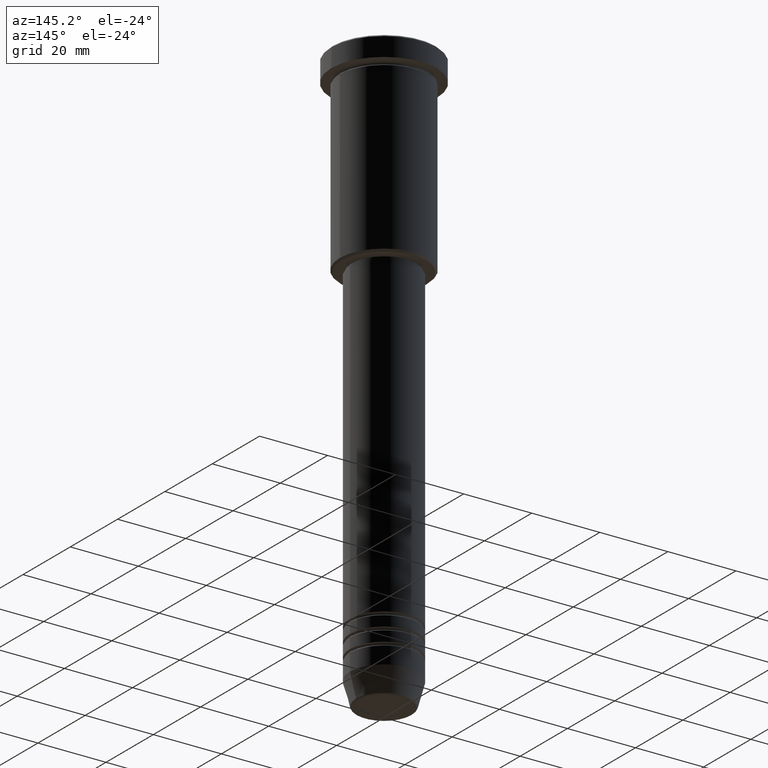
[diagram: clean part render]
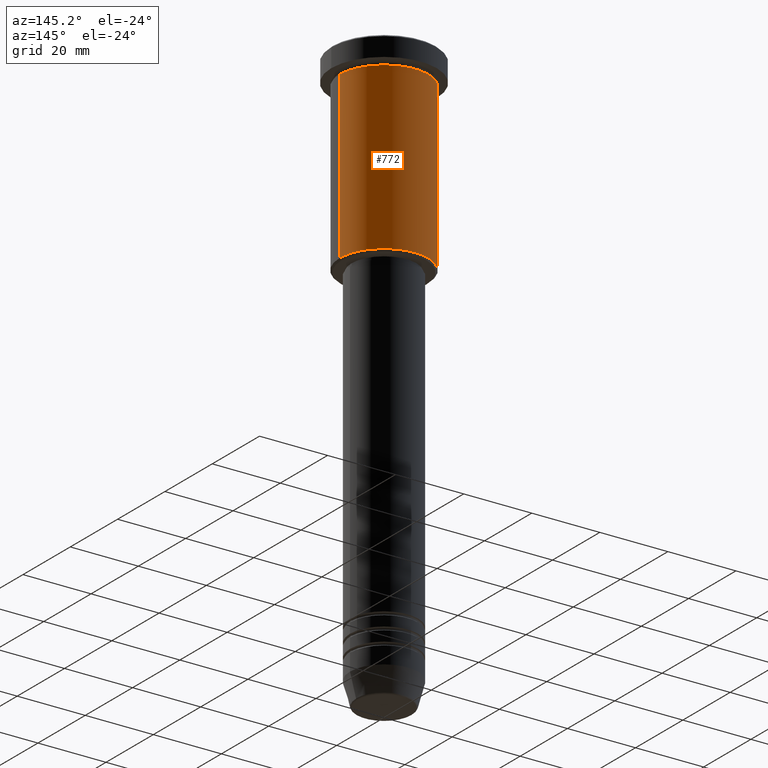
[diagram: same view with one face highlighted and labeled with its STEP entity id]
A machine part, auxiliary view. The second image highlights one B-rep face of the part: STEP entity #772.
In plain terms, the highlighted cylindrical surface (partial cylindrical patch) has radius 13 mm, axis along (-0, -0, 1).
Its self-contained STEP definition (entity closure, byte-faithful):
#69 = CIRCLE ( 'NONE', #274, 13.00000000000000178 ) ;
#71 = VERTEX_POINT ( 'NONE', #950 ) ;
#84 = CARTESIAN_POINT ( 'NONE',  ( 0.000000000000000000, 0.000000000000000000, 0.000000000000000000 ) ) ;
#86 = EDGE_CURVE ( 'NONE', #71, #120, #1081, .T. ) ;
#120 = VERTEX_POINT ( 'NONE', #335 ) ;
#154 = EDGE_CURVE ( 'NONE', #880, #829, #515, .T. ) ;
#178 = CARTESIAN_POINT ( 'NONE',  ( 0.000000000000000000, 0.000000000000000000, -55.49999999999995737 ) ) ;
#274 = AXIS2_PLACEMENT_3D ( 'NONE', #178, #547, #915 ) ;
#316 = EDGE_CURVE ( 'NONE', #120, #829, #1127, .T. ) ;
#335 = CARTESIAN_POINT ( 'NONE',  ( 13.00000000000000178, 0.000000000000000000, -6.999999999999995559 ) ) ;
#376 = DIRECTION ( 'NONE',  ( -0.000000000000000000, -0.000000000000000000, 1.000000000000000000 ) ) ;
#385 = CARTESIAN_POINT ( 'NONE',  ( -13.00000000000000178, 1.592040838891559293E-15, -55.49999999999995737 ) ) ;
#438 = ORIENTED_EDGE ( 'NONE', *, *, #316, .F. ) ;
#482 = VECTOR ( 'NONE', #620, 1000.000000000000000 ) ;
#486 = AXIS2_PLACEMENT_3D ( 'NONE', #84, #553, #833 ) ;
#515 = LINE ( 'NONE', #724, #482 ) ;
#538 = DIRECTION ( 'NONE',  ( -0.000000000000000000, -0.000000000000000000, 1.000000000000000000 ) ) ;
#547 = DIRECTION ( 'NONE',  ( -0.000000000000000000, -0.000000000000000000, 1.000000000000000000 ) ) ;
#553 = DIRECTION ( 'NONE',  ( -0.000000000000000000, -0.000000000000000000, 1.000000000000000000 ) ) ;
#560 = ORIENTED_EDGE ( 'NONE', *, *, #590, .T. ) ;
#590 = EDGE_CURVE ( 'NONE', #71, #880, #69, .T. ) ;
#610 = CARTESIAN_POINT ( 'NONE',  ( 13.00000000000000178, 0.000000000000000000, 0.000000000000000000 ) ) ;
#620 = DIRECTION ( 'NONE',  ( -0.000000000000000000, -0.000000000000000000, 1.000000000000000000 ) ) ;
#692 = EDGE_LOOP ( 'NONE', ( #560, #792, #438, #1062 ) ) ;
#699 = VECTOR ( 'NONE', #538, 1000.000000000000000 ) ;
#724 = CARTESIAN_POINT ( 'NONE',  ( -13.00000000000000178, 1.592040838891559293E-15, 0.000000000000000000 ) ) ;
#772 = ADVANCED_FACE ( 'NONE', ( #1093 ), #906, .T. ) ;
#792 = ORIENTED_EDGE ( 'NONE', *, *, #154, .T. ) ;
#829 = VERTEX_POINT ( 'NONE', #1054 ) ;
#833 = DIRECTION ( 'NONE',  ( 1.000000000000000000, 0.000000000000000000, 0.000000000000000000 ) ) ;
#880 = VERTEX_POINT ( 'NONE', #385 ) ;
#906 = CYLINDRICAL_SURFACE ( 'NONE', #486, 13.00000000000000178 ) ;
#915 = DIRECTION ( 'NONE',  ( -1.000000000000000000, 0.000000000000000000, 0.000000000000000000 ) ) ;
#935 = AXIS2_PLACEMENT_3D ( 'NONE', #939, #376, #1104 ) ;
#939 = CARTESIAN_POINT ( 'NONE',  ( 0.000000000000000000, 0.000000000000000000, -6.999999999999995559 ) ) ;
#950 = CARTESIAN_POINT ( 'NONE',  ( 13.00000000000000178, 0.000000000000000000, -55.49999999999995737 ) ) ;
#1054 = CARTESIAN_POINT ( 'NONE',  ( -13.00000000000000178, 1.592040838891559293E-15, -6.999999999999995559 ) ) ;
#1062 = ORIENTED_EDGE ( 'NONE', *, *, #86, .F. ) ;
#1081 = LINE ( 'NONE', #610, #699 ) ;
#1093 = FACE_OUTER_BOUND ( 'NONE', #692, .T. ) ;
#1104 = DIRECTION ( 'NONE',  ( 1.000000000000000000, 0.000000000000000000, 0.000000000000000000 ) ) ;
#1127 = CIRCLE ( 'NONE', #935, 13.00000000000000178 ) ;